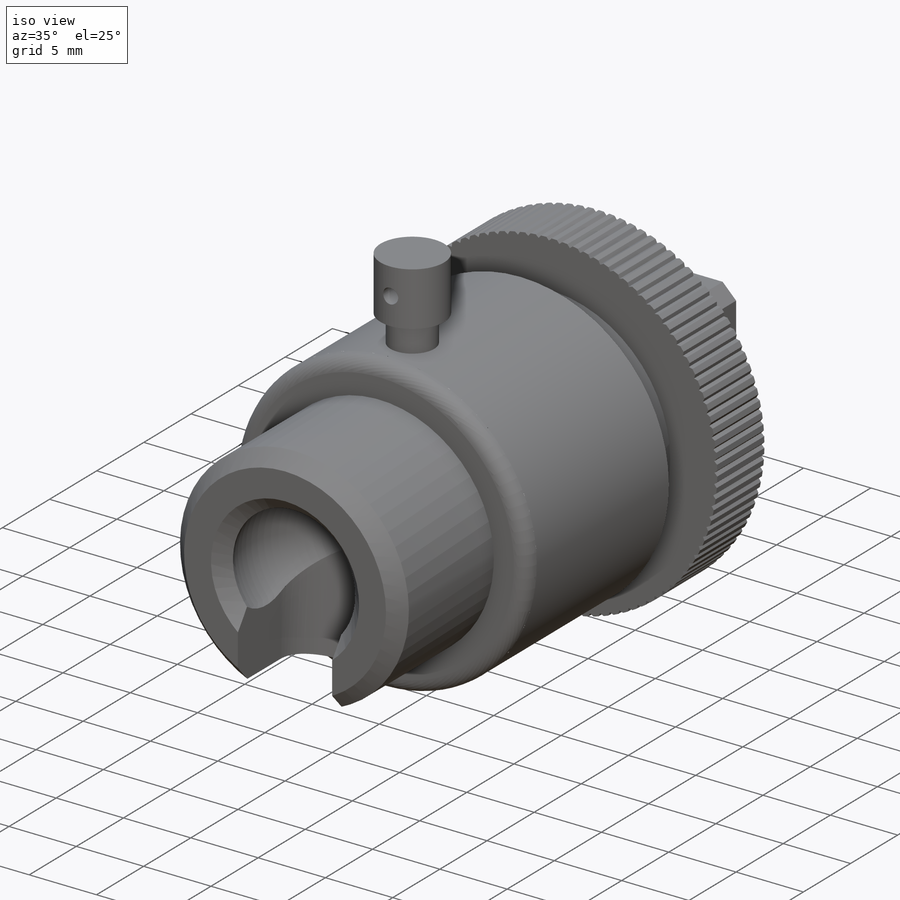
[diagram: iso view]
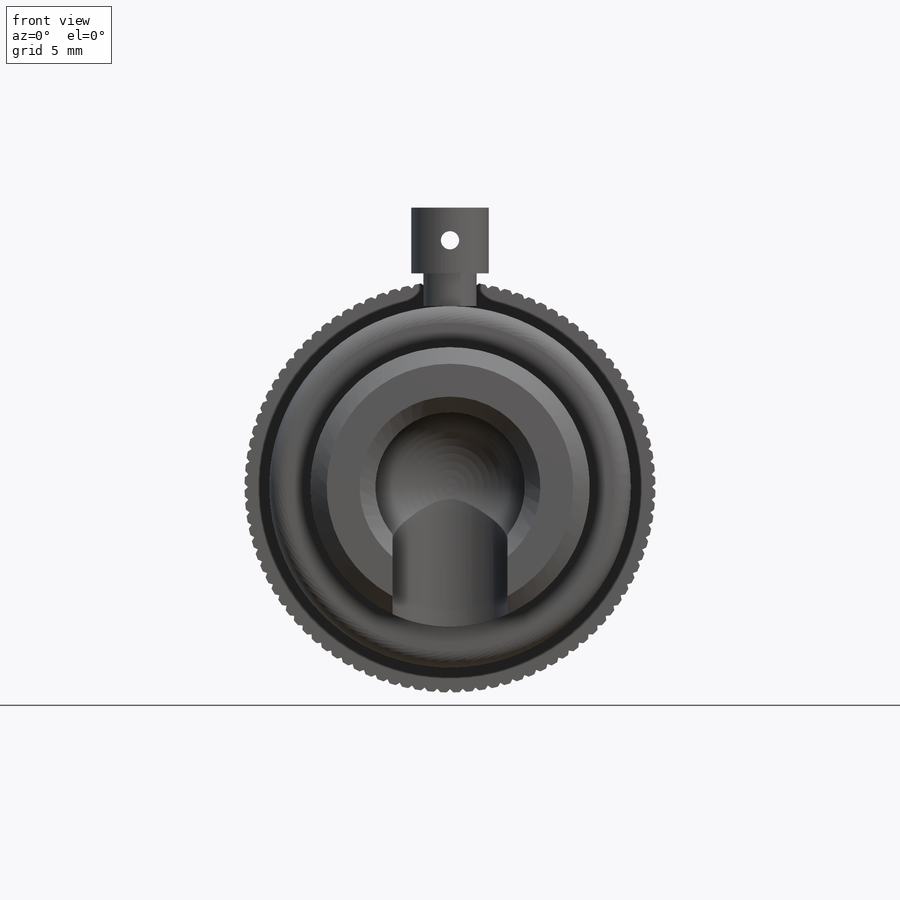
[diagram: front view]
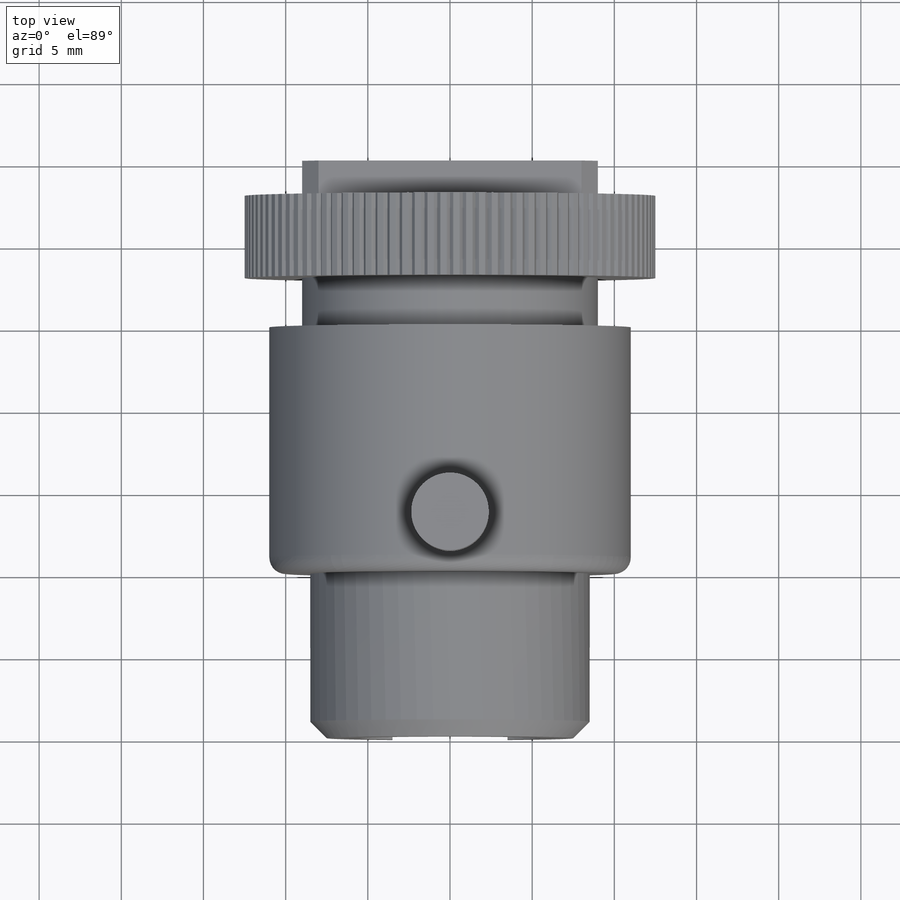
[diagram: top view]
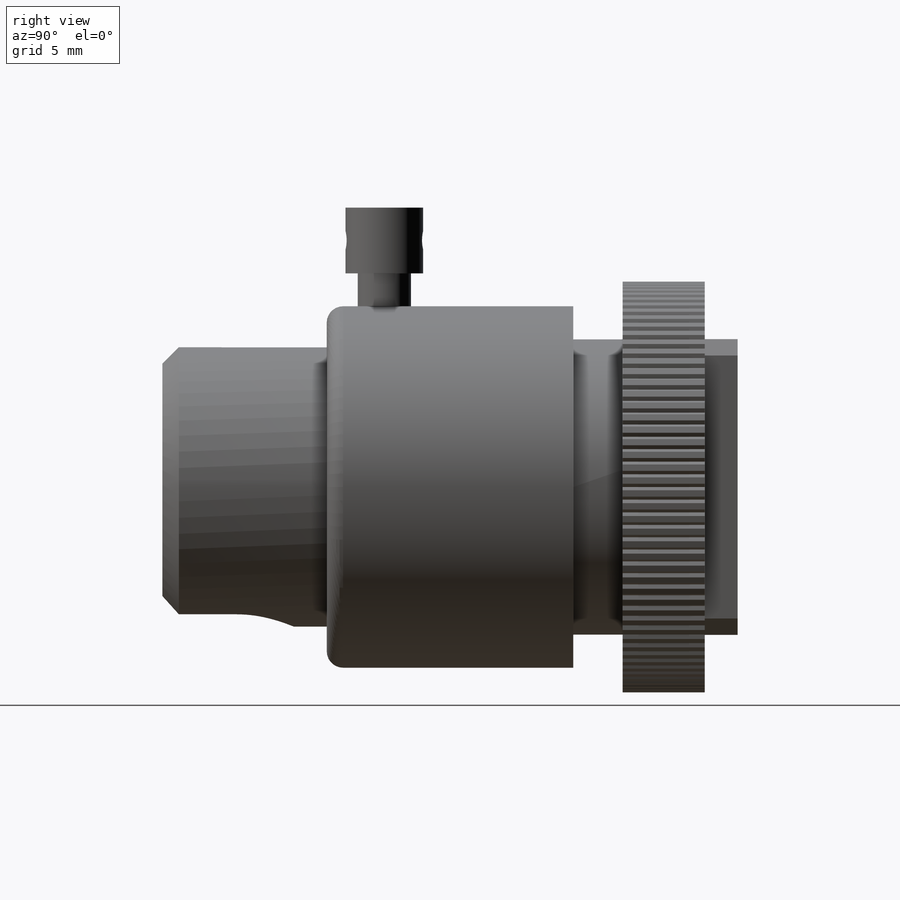
[diagram: right view]
SOLIDWORKS PART (.sldprt)
format: sldprt  version: not decoded by parser v0  size: 809,984 bytes
history: native  units: mm
features: sketch x14, extrude x7, plane x5, cut_extrude x4, material x1, cut_revolve x1, chamfer x1, fillet x1, hole x1, thread x1 (+8 scaffold rows collapsed)
feature tree (44):
  scaffold x8  (default folders/planes/origin — collapsed)
  material  "Материал <не указан>"
  plane  "Спереди"
  plane  "Сверху"
  plane  "Справа"
  sketch  "Эскиз1"  dims[D1=22.0mm]
  extrude  "Бобышка-Вытянуть1"  Depth=15mm
  sketch  "Эскиз2"  dims[D1=17.0mm]
  extrude  "Бобышка-Вытянуть2"  Depth=10mm
  sketch  "Эскиз5"  dims[D1=10.0mm]
  cut_revolve  "Вырез-Повернуть1"  Angle=360deg
  sketch  "Эскиз6"  dims[D1=9.0mm]
  cut_extrude  "Вырез-Вытянуть2"  Depth=1mm
  sketch  "Эскиз7"  dims[D2=7.0mm D1=8.0mm]
  cut_extrude  "Вырез-Вытянуть3"  [1 undecoded]
  chamfer  "Фаска1"  Distance=1mm Angle=45deg
  fillet  "Скругление1"  Radius=1mm
  sketch  "Эскиз8"  dims[D1=18.0mm]
  extrude  "Бобышка-Вытянуть3"  Depth=8mm
  sketch  "Эскиз9"  dims[D1=25.0mm]
  extrude  "Бобышка-Вытянуть4"  Depth=5mm
  sketch  "Эскиз10"  dims[c1.D1=~1.13597mm c2.D1=90.0deg c2.D2=~1.336788mm c3.D2=60.0deg c3.D3=12.3mm c4.D2=~0.678867mm c5.D2=45.0deg c5.D4=100.0]
  cut_extrude  "Вырез-Вытянуть4"  [1 undecoded]
  sketch  "Эскиз11"  dims[D1=18.0mm D2=18.0mm]
  extrude  "Бобышка-Вытянуть5"  Depth=2mm
  hole  "Отверстие обработанное метчиком 1/4-201"  [1 undecoded]
  sketch  "Эскиз14"
  sketch  "Эскиз13"  dims[hole-wizard template sketch: 47 standard entries collapsed; hole parameters kept: c15.Глубина сверла=10.0mm c15.D3=~14.816244mm c15.Угол заточки сверла=118.0deg]
  thread  "Отверстие резьбы1"  Diameter=10mm  [1 undecoded]
  plane  "Плоскость1"
  sketch  "Эскиз15"
  extrude  "Бобышка-Вытянуть6"  Depth=2mm
  sketch  "Эскиз16"
  extrude  "Бобышка-Вытянуть7"  Depth=4mm
  plane  "Плоскость2"
  sketch  "Эскиз17"
  cut_extrude  "Вырез-Вытянуть6"  [1 undecoded]
decode coverage: 22 of 30 modeling features carry decoded parameters
note: ~ marks probable driven/reference dimensions
note: 5 parameter values undecoded
summary: no parameter record found for 4 features
note: suppression state not decoded; provenance and decode notes live in map.json
